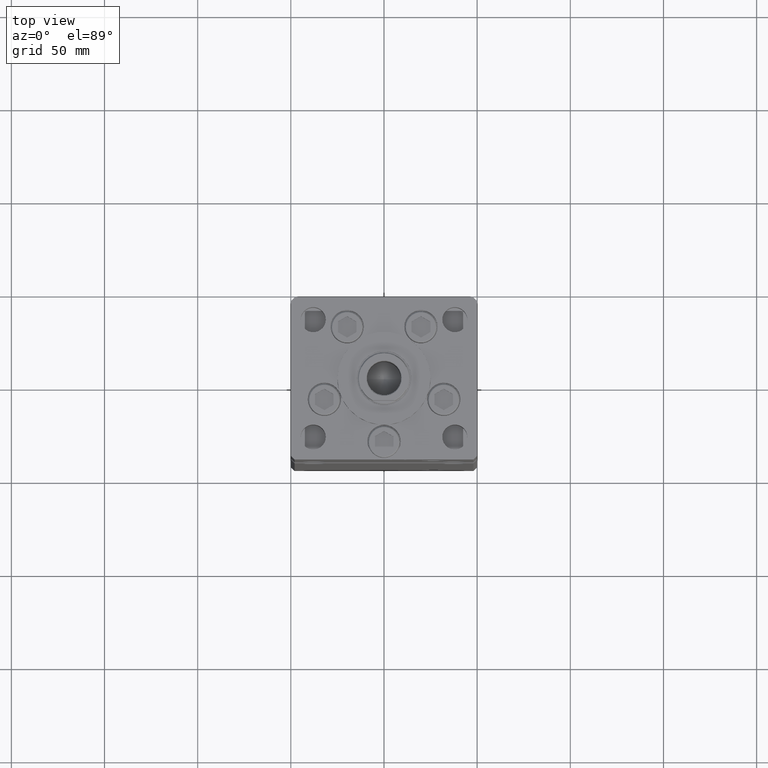
[diagram: clean part render]
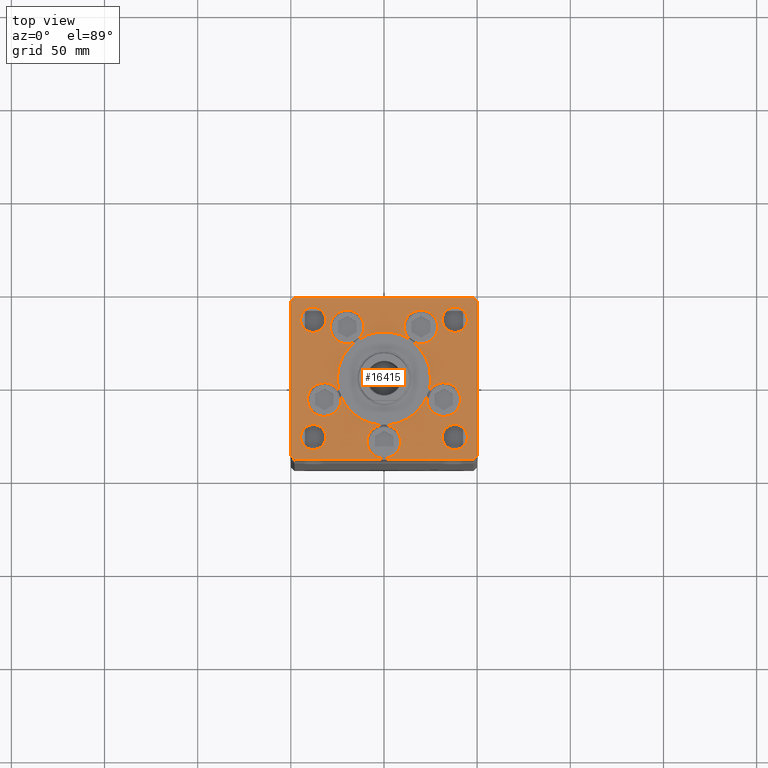
[diagram: same view with one face highlighted and labeled with its STEP entity id]
A machine part, top view. The second image highlights one B-rep face of the part: STEP entity #16415.
In plain terms, the highlighted planar face has unit normal (0, 0, 1).
Its self-contained STEP definition (entity closure, byte-faithful):
#86 = AXIS2_PLACEMENT_3D ( 'NONE', #17514, #25861, #8919 ) ;
#383 = ORIENTED_EDGE ( 'NONE', *, *, #8195, .F. ) ;
#776 = EDGE_CURVE ( 'NONE', #48174, #3886, #2328, .T. ) ;
#792 = DIRECTION ( 'NONE',  ( 0.000000000000000000, 0.000000000000000000, 1.000000000000000000 ) ) ;
#817 = CIRCLE ( 'NONE', #30876, 25.00000000000000000 ) ;
#1079 = ORIENTED_EDGE ( 'NONE', *, *, #44119, .F. ) ;
#1084 = CARTESIAN_POINT ( 'NONE',  ( -10.82068048781375147, 27.62499999999998934, 0.000000000000000000 ) ) ;
#1199 = DIRECTION ( 'NONE',  ( 0.000000000000000000, 0.000000000000000000, 1.000000000000000000 ) ) ;
#1291 = CIRCLE ( 'NONE', #8171, 25.00000000000000000 ) ;
#1341 = DIRECTION ( 'NONE',  ( 0.000000000000000000, 0.000000000000000000, 1.000000000000000000 ) ) ;
#1514 = DIRECTION ( 'NONE',  ( 1.000000000000000000, 0.000000000000000000, 0.000000000000000000 ) ) ;
#1651 = EDGE_CURVE ( 'NONE', #17766, #36702, #34996, .T. ) ;
#1687 = CARTESIAN_POINT ( 'NONE',  ( 32.05550741379015989, -11.33333333333332860, 0.000000000000000000 ) ) ;
#1797 = CARTESIAN_POINT ( 'NONE',  ( 23.57022603955158502, -8.333333333333332149, 0.000000000000000000 ) ) ;
#2023 = CARTESIAN_POINT ( 'NONE',  ( 23.05550741379015633, -11.33333333333332682, 0.000000000000000000 ) ) ;
#2281 = EDGE_LOOP ( 'NONE', ( #25132, #46814, #45062, #18929, #51613, #25404, #30604, #19545 ) ) ;
#2328 = CIRCLE ( 'NONE', #48666, 25.00000000000000000 ) ;
#2331 = CARTESIAN_POINT ( 'NONE',  ( 50.00000000000000000, 41.50000000000000711, 0.000000000000000000 ) ) ;
#2467 = EDGE_CURVE ( 'NONE', #12688, #18691, #28976, .T. ) ;
#2756 = VERTEX_POINT ( 'NONE', #36988 ) ;
#2762 = VECTOR ( 'NONE', #30854, 1000.000000000000000 ) ;
#2988 = AXIS2_PLACEMENT_3D ( 'NONE', #11235, #35705, #3440 ) ;
#3226 = EDGE_CURVE ( 'NONE', #6211, #41955, #47905, .T. ) ;
#3440 = DIRECTION ( 'NONE',  ( 1.000000000000000000, 0.000000000000000000, 0.000000000000000000 ) ) ;
#3886 = VERTEX_POINT ( 'NONE', #49533 ) ;
#4012 = CARTESIAN_POINT ( 'NONE',  ( 0.000000000000000000, -34.00000000000000000, 0.000000000000000000 ) ) ;
#4038 = EDGE_CURVE ( 'NONE', #25904, #47321, #30459, .T. ) ;
#4279 = CIRCLE ( 'NONE', #16299, 25.00000000000000000 ) ;
#4281 = ORIENTED_EDGE ( 'NONE', *, *, #9252, .F. ) ;
#4333 = VERTEX_POINT ( 'NONE', #8892 ) ;
#4598 = AXIS2_PLACEMENT_3D ( 'NONE', #50234, #21778, #14490 ) ;
#4628 = EDGE_CURVE ( 'NONE', #10903, #35834, #31642, .T. ) ;
#4926 = DIRECTION ( 'NONE',  ( 1.000000000000000000, 0.000000000000000000, 0.000000000000000000 ) ) ;
#4933 = VERTEX_POINT ( 'NONE', #25698 ) ;
#5077 = DIRECTION ( 'NONE',  ( -1.000000000000000000, 0.000000000000000000, 0.000000000000000000 ) ) ;
#5112 = DIRECTION ( 'NONE',  ( 0.000000000000000000, 1.000000000000000000, 0.000000000000000000 ) ) ;
#5137 = DIRECTION ( 'NONE',  ( 0.000000000000000000, 0.000000000000000000, 1.000000000000000000 ) ) ;
#5158 = CIRCLE ( 'NONE', #49767, 9.000000000000001776 ) ;
#5238 = AXIS2_PLACEMENT_3D ( 'NONE', #19302, #52071, #40003 ) ;
#5240 = CARTESIAN_POINT ( 'NONE',  ( 47.99999999999999289, 43.50000000000000000, 0.000000000000000000 ) ) ;
#5527 = CIRCLE ( 'NONE', #44162, 9.000000000000001776 ) ;
#5581 = CARTESIAN_POINT ( 'NONE',  ( 19.82068048781374969, 27.62499999999998934, 0.000000000000000000 ) ) ;
#5818 = VERTEX_POINT ( 'NONE', #7419 ) ;
#5860 = ORIENTED_EDGE ( 'NONE', *, *, #39821, .F. ) ;
#6096 = DIRECTION ( 'NONE',  ( 0.000000000000000000, 0.000000000000000000, 1.000000000000000000 ) ) ;
#6211 = VERTEX_POINT ( 'NONE', #26409 ) ;
#6301 = AXIS2_PLACEMENT_3D ( 'NONE', #44797, #16564, #20078 ) ;
#6342 = CIRCLE ( 'NONE', #4598, 6.749999999999999112 ) ;
#6510 = CARTESIAN_POINT ( 'NONE',  ( 19.82068048781374969, 27.62499999999998934, 0.000000000000000000 ) ) ;
#6697 = VECTOR ( 'NONE', #45365, 1000.000000000000114 ) ;
#6853 = CIRCLE ( 'NONE', #11997, 9.000000000000001776 ) ;
#6941 = FACE_BOUND ( 'NONE', #38872, .T. ) ;
#7071 = AXIS2_PLACEMENT_3D ( 'NONE', #4012, #20153, #31975 ) ;
#7419 = CARTESIAN_POINT ( 'NONE',  ( 41.05550741379015989, -11.33333333333332860, 0.000000000000000000 ) ) ;
#7756 = CARTESIAN_POINT ( 'NONE',  ( 44.75000000000000000, 31.50000000000000000, 0.000000000000000000 ) ) ;
#7765 = VECTOR ( 'NONE', #22781, 999.9999999999998863 ) ;
#7945 = CIRCLE ( 'NONE', #19109, 6.749999999999999112 ) ;
#8032 = CARTESIAN_POINT ( 'NONE',  ( 0.000000000000000000, -6.938893903907228378E-15, 0.000000000000000000 ) ) ;
#8171 = AXIS2_PLACEMENT_3D ( 'NONE', #50960, #6096, #1514 ) ;
#8195 = EDGE_CURVE ( 'NONE', #3886, #24441, #26588, .T. ) ;
#8379 = EDGE_CURVE ( 'NONE', #32514, #41955, #817, .T. ) ;
#8437 = CARTESIAN_POINT ( 'NONE',  ( -19.82068048781374969, 27.62499999999998934, 0.000000000000000000 ) ) ;
#8556 = ORIENTED_EDGE ( 'NONE', *, *, #12631, .F. ) ;
#8586 = CARTESIAN_POINT ( 'NONE',  ( -50.00000000000000000, -41.50000000000004263, 0.000000000000000000 ) ) ;
#8614 = CIRCLE ( 'NONE', #17169, 6.749999999999999112 ) ;
#8892 = CARTESIAN_POINT ( 'NONE',  ( 44.75000000000000711, -31.50000000000000711, 0.000000000000000000 ) ) ;
#8919 = DIRECTION ( 'NONE',  ( -1.000000000000000000, 0.000000000000000000, 0.000000000000000000 ) ) ;
#9076 = CARTESIAN_POINT ( 'NONE',  ( 48.00000000000000711, -43.49999999999992184, 0.000000000000000000 ) ) ;
#9252 = EDGE_CURVE ( 'NONE', #24441, #32514, #4279, .T. ) ;
#9357 = DIRECTION ( 'NONE',  ( 0.000000000000000000, 0.000000000000000000, 1.000000000000000000 ) ) ;
#9766 = DIRECTION ( 'NONE',  ( 0.000000000000000000, 0.000000000000000000, 1.000000000000000000 ) ) ;
#10017 = VECTOR ( 'NONE', #17067, 1000.000000000000000 ) ;
#10594 = EDGE_LOOP ( 'NONE', ( #25775, #28151 ) ) ;
#10671 = EDGE_CURVE ( 'NONE', #47640, #46732, #8614, .T. ) ;
#10840 = EDGE_CURVE ( 'NONE', #46732, #47640, #14650, .T. ) ;
#10903 = VERTEX_POINT ( 'NONE', #7756 ) ;
#10982 = CARTESIAN_POINT ( 'NONE',  ( -38.00000000000000000, 31.50000000000000000, 0.000000000000000000 ) ) ;
#11035 = VECTOR ( 'NONE', #26438, 1000.000000000000000 ) ;
#11106 = CIRCLE ( 'NONE', #31703, 9.000000000000001776 ) ;
#11235 = CARTESIAN_POINT ( 'NONE',  ( 0.000000000000000000, -34.00000000000000000, 0.000000000000000000 ) ) ;
#11755 = DIRECTION ( 'NONE',  ( 1.000000000000000000, 0.000000000000000000, 0.000000000000000000 ) ) ;
#11792 = DIRECTION ( 'NONE',  ( 0.000000000000000000, 0.000000000000000000, 1.000000000000000000 ) ) ;
#11979 = CIRCLE ( 'NONE', #42017, 9.000000000000000000 ) ;
#11997 = AXIS2_PLACEMENT_3D ( 'NONE', #12661, #1341, #17742 ) ;
#12467 = ORIENTED_EDGE ( 'NONE', *, *, #52353, .F. ) ;
#12572 = DIRECTION ( 'NONE',  ( -0.000000000000000000, -0.000000000000000000, -1.000000000000000000 ) ) ;
#12631 = EDGE_CURVE ( 'NONE', #24441, #48363, #6853, .T. ) ;
#12661 = CARTESIAN_POINT ( 'NONE',  ( 32.05550741379015989, -11.33333333333332860, 0.000000000000000000 ) ) ;
#12688 = VERTEX_POINT ( 'NONE', #29847 ) ;
#12800 = DIRECTION ( 'NONE',  ( 0.000000000000000000, 0.000000000000000000, 1.000000000000000000 ) ) ;
#12955 = CIRCLE ( 'NONE', #86, 6.749999999999999112 ) ;
#13180 = EDGE_CURVE ( 'NONE', #23215, #48174, #11106, .T. ) ;
#13391 = DIRECTION ( 'NONE',  ( 1.000000000000000000, 0.000000000000000000, 0.000000000000000000 ) ) ;
#13645 = EDGE_CURVE ( 'NONE', #25851, #23215, #5158, .T. ) ;
#13665 = LINE ( 'NONE', #14457, #2762 ) ;
#13680 = DIRECTION ( 'NONE',  ( -0.000000000000000000, -0.000000000000000000, -1.000000000000000000 ) ) ;
#13901 = VECTOR ( 'NONE', #46725, 1000.000000000000000 ) ;
#14307 = CIRCLE ( 'NONE', #34052, 9.000000000000001776 ) ;
#14355 = ORIENTED_EDGE ( 'NONE', *, *, #31729, .F. ) ;
#14437 = DIRECTION ( 'NONE',  ( 1.000000000000000000, 0.000000000000000000, 0.000000000000000000 ) ) ;
#14457 = CARTESIAN_POINT ( 'NONE',  ( -48.00000000000000711, -43.50000000000002842, 0.000000000000000000 ) ) ;
#14490 = DIRECTION ( 'NONE',  ( 1.000000000000000000, 0.000000000000000000, 0.000000000000000000 ) ) ;
#14650 = CIRCLE ( 'NONE', #35249, 6.749999999999999112 ) ;
#14749 = DIRECTION ( 'NONE',  ( -0.000000000000000000, -0.000000000000000000, -1.000000000000000000 ) ) ;
#15045 = ORIENTED_EDGE ( 'NONE', *, *, #22940, .F. ) ;
#15395 = VERTEX_POINT ( 'NONE', #22241 ) ;
#15800 = ORIENTED_EDGE ( 'NONE', *, *, #3226, .F. ) ;
#16057 = FACE_OUTER_BOUND ( 'NONE', #2281, .T. ) ;
#16269 = EDGE_CURVE ( 'NONE', #4333, #20771, #39587, .T. ) ;
#16299 = AXIS2_PLACEMENT_3D ( 'NONE', #8032, #11792, #20392 ) ;
#16415 = ADVANCED_FACE ( 'NONE', ( #24148, #20104, #40536, #52603, #16057, #6941 ), #27895, .T. ) ;
#16520 = AXIS2_PLACEMENT_3D ( 'NONE', #25002, #45406, #33311 ) ;
#16564 = DIRECTION ( 'NONE',  ( 0.000000000000000000, 0.000000000000000000, 1.000000000000000000 ) ) ;
#16641 = CARTESIAN_POINT ( 'NONE',  ( -23.57022603955158502, -8.333333333333332149, 0.000000000000000000 ) ) ;
#16718 = CARTESIAN_POINT ( 'NONE',  ( -14.57402977045128978, 20.31249999999999289, 0.000000000000000000 ) ) ;
#16804 = EDGE_CURVE ( 'NONE', #20771, #4333, #12955, .T. ) ;
#17067 = DIRECTION ( 'NONE',  ( -1.000000000000000000, -2.891205793294678326E-16, 0.000000000000000000 ) ) ;
#17120 = VERTEX_POINT ( 'NONE', #31933 ) ;
#17129 = AXIS2_PLACEMENT_3D ( 'NONE', #30433, #46822, #26412 ) ;
#17169 = AXIS2_PLACEMENT_3D ( 'NONE', #10982, #14749, #43777 ) ;
#17514 = CARTESIAN_POINT ( 'NONE',  ( 38.00000000000000711, -31.50000000000000711, 0.000000000000000000 ) ) ;
#17742 = DIRECTION ( 'NONE',  ( 1.000000000000000000, 0.000000000000000000, 0.000000000000000000 ) ) ;
#17766 = VERTEX_POINT ( 'NONE', #22082 ) ;
#17964 = LINE ( 'NONE', #30332, #13901 ) ;
#17993 = DIRECTION ( 'NONE',  ( 1.000000000000000000, 0.000000000000000000, 0.000000000000000000 ) ) ;
#18096 = DIRECTION ( 'NONE',  ( 1.000000000000000000, 0.000000000000000000, 0.000000000000000000 ) ) ;
#18149 = CARTESIAN_POINT ( 'NONE',  ( -23.05550741379015633, -11.33333333333332860, 0.000000000000000000 ) ) ;
#18212 = DIRECTION ( 'NONE',  ( 0.000000000000000000, 0.000000000000000000, 1.000000000000000000 ) ) ;
#18262 = ORIENTED_EDGE ( 'NONE', *, *, #20802, .F. ) ;
#18317 = CIRCLE ( 'NONE', #6301, 9.000000000000000000 ) ;
#18446 = DIRECTION ( 'NONE',  ( 0.000000000000000000, 0.000000000000000000, 1.000000000000000000 ) ) ;
#18611 = DIRECTION ( 'NONE',  ( 0.000000000000000000, 0.000000000000000000, 1.000000000000000000 ) ) ;
#18687 = AXIS2_PLACEMENT_3D ( 'NONE', #28297, #19708, #44699 ) ;
#18691 = VERTEX_POINT ( 'NONE', #30857 ) ;
#18929 = ORIENTED_EDGE ( 'NONE', *, *, #38221, .T. ) ;
#19109 = AXIS2_PLACEMENT_3D ( 'NONE', #41274, #1199, #50376 ) ;
#19191 = DIRECTION ( 'NONE',  ( 1.000000000000000000, 0.000000000000000000, 0.000000000000000000 ) ) ;
#19302 = CARTESIAN_POINT ( 'NONE',  ( 0.000000000000000000, 0.000000000000000000, 0.000000000000000000 ) ) ;
#19545 = ORIENTED_EDGE ( 'NONE', *, *, #30623, .T. ) ;
#19708 = DIRECTION ( 'NONE',  ( 0.000000000000000000, 0.000000000000000000, 1.000000000000000000 ) ) ;
#19833 = AXIS2_PLACEMENT_3D ( 'NONE', #21487, #13680, #5077 ) ;
#20078 = DIRECTION ( 'NONE',  ( 1.000000000000000000, 0.000000000000000000, 0.000000000000000000 ) ) ;
#20104 = FACE_BOUND ( 'NONE', #38404, .T. ) ;
#20153 = DIRECTION ( 'NONE',  ( 0.000000000000000000, 0.000000000000000000, 1.000000000000000000 ) ) ;
#20392 = DIRECTION ( 'NONE',  ( 1.000000000000000000, 0.000000000000000000, 0.000000000000000000 ) ) ;
#20428 = CARTESIAN_POINT ( 'NONE',  ( 0.000000000000000000, -6.938893903907228378E-15, 0.000000000000000000 ) ) ;
#20771 = VERTEX_POINT ( 'NONE', #45934 ) ;
#20802 = EDGE_CURVE ( 'NONE', #4933, #33617, #39707, .T. ) ;
#20819 = CARTESIAN_POINT ( 'NONE',  ( 47.99999999999999289, 43.50000000000000000, 0.000000000000000000 ) ) ;
#21283 = ORIENTED_EDGE ( 'NONE', *, *, #45318, .F. ) ;
#21487 = CARTESIAN_POINT ( 'NONE',  ( 38.00000000000000711, -31.50000000000000711, 0.000000000000000000 ) ) ;
#21589 = CARTESIAN_POINT ( 'NONE',  ( -48.00000000000000000, 43.49999999999997158, 0.000000000000000000 ) ) ;
#21597 = CARTESIAN_POINT ( 'NONE',  ( -31.25000000000000000, 31.50000000000000000, 0.000000000000000000 ) ) ;
#21778 = DIRECTION ( 'NONE',  ( 0.000000000000000000, 0.000000000000000000, 1.000000000000000000 ) ) ;
#22082 = CARTESIAN_POINT ( 'NONE',  ( -44.75000000000000711, -31.50000000000000711, 0.000000000000000000 ) ) ;
#22241 = CARTESIAN_POINT ( 'NONE',  ( -50.00000000000000000, -41.50000000000004263, 0.000000000000000000 ) ) ;
#22711 = CARTESIAN_POINT ( 'NONE',  ( 0.000000000000000000, -34.00000000000000000, 0.000000000000000000 ) ) ;
#22781 = DIRECTION ( 'NONE',  ( -0.7071067811865512365, 0.7071067811865439090, 0.000000000000000000 ) ) ;
#22940 = EDGE_CURVE ( 'NONE', #17120, #6211, #24458, .T. ) ;
#23215 = VERTEX_POINT ( 'NONE', #18149 ) ;
#24148 = FACE_BOUND ( 'NONE', #45582, .T. ) ;
#24399 = ORIENTED_EDGE ( 'NONE', *, *, #40143, .F. ) ;
#24441 = VERTEX_POINT ( 'NONE', #1797 ) ;
#24458 = CIRCLE ( 'NONE', #33870, 8.999999999999998224 ) ;
#24472 = DIRECTION ( 'NONE',  ( 0.7071067811865487940, -0.7071067811865463515, 0.000000000000000000 ) ) ;
#24797 = EDGE_CURVE ( 'NONE', #51934, #3886, #11979, .T. ) ;
#25002 = CARTESIAN_POINT ( 'NONE',  ( -19.82068048781374969, 27.62499999999998934, 0.000000000000000000 ) ) ;
#25132 = ORIENTED_EDGE ( 'NONE', *, *, #33959, .T. ) ;
#25266 = EDGE_CURVE ( 'NONE', #26784, #43066, #35132, .T. ) ;
#25404 = ORIENTED_EDGE ( 'NONE', *, *, #53131, .T. ) ;
#25631 = DIRECTION ( 'NONE',  ( 0.000000000000000000, 0.000000000000000000, 1.000000000000000000 ) ) ;
#25698 = CARTESIAN_POINT ( 'NONE',  ( -28.82068048781374969, 27.62499999999998934, 0.000000000000000000 ) ) ;
#25775 = ORIENTED_EDGE ( 'NONE', *, *, #37577, .F. ) ;
#25851 = VERTEX_POINT ( 'NONE', #34477 ) ;
#25861 = DIRECTION ( 'NONE',  ( -0.000000000000000000, -0.000000000000000000, -1.000000000000000000 ) ) ;
#25904 = VERTEX_POINT ( 'NONE', #21589 ) ;
#26208 = DIRECTION ( 'NONE',  ( 1.000000000000000000, 0.000000000000000000, 0.000000000000000000 ) ) ;
#26409 = CARTESIAN_POINT ( 'NONE',  ( 10.82068048781375147, 27.62499999999998934, 0.000000000000000000 ) ) ;
#26412 = DIRECTION ( 'NONE',  ( 1.000000000000000000, 0.000000000000000000, 0.000000000000000000 ) ) ;
#26438 = DIRECTION ( 'NONE',  ( -0.7071067811865536790, -0.7071067811865414665, 0.000000000000000000 ) ) ;
#26504 = ORIENTED_EDGE ( 'NONE', *, *, #10840, .T. ) ;
#26588 = CIRCLE ( 'NONE', #17129, 25.00000000000000000 ) ;
#26784 = VERTEX_POINT ( 'NONE', #37866 ) ;
#26835 = CIRCLE ( 'NONE', #7071, 9.000000000000000000 ) ;
#26988 = CARTESIAN_POINT ( 'NONE',  ( 19.82068048781374969, 27.62499999999998934, 0.000000000000000000 ) ) ;
#27128 = CARTESIAN_POINT ( 'NONE',  ( -31.25000000000000711, -31.50000000000000711, 0.000000000000000000 ) ) ;
#27778 = CIRCLE ( 'NONE', #44085, 9.000000000000001776 ) ;
#27895 = PLANE ( 'NONE',  #5238 ) ;
#28001 = AXIS2_PLACEMENT_3D ( 'NONE', #8437, #25631, #4926 ) ;
#28067 = CARTESIAN_POINT ( 'NONE',  ( 0.000000000000000000, -6.938893903907228378E-15, 0.000000000000000000 ) ) ;
#28151 = ORIENTED_EDGE ( 'NONE', *, *, #1651, .F. ) ;
#28297 = CARTESIAN_POINT ( 'NONE',  ( -38.00000000000000711, -31.50000000000000711, 0.000000000000000000 ) ) ;
#28591 = CIRCLE ( 'NONE', #39762, 25.00000000000000000 ) ;
#28976 = LINE ( 'NONE', #9076, #6697 ) ;
#29471 = VECTOR ( 'NONE', #24472, 1000.000000000000000 ) ;
#29847 = CARTESIAN_POINT ( 'NONE',  ( 48.00000000000000711, -43.49999999999992184, 0.000000000000000000 ) ) ;
#30067 = VERTEX_POINT ( 'NONE', #1084 ) ;
#30096 = DIRECTION ( 'NONE',  ( 1.000000000000000000, 0.000000000000000000, 0.000000000000000000 ) ) ;
#30247 = CIRCLE ( 'NONE', #49141, 25.00000000000000000 ) ;
#30332 = CARTESIAN_POINT ( 'NONE',  ( -50.00000000000000711, 41.49999999999999289, 0.000000000000000000 ) ) ;
#30366 = CARTESIAN_POINT ( 'NONE',  ( 0.000000000000000000, -6.938893903907228378E-15, 0.000000000000000000 ) ) ;
#30433 = CARTESIAN_POINT ( 'NONE',  ( 0.000000000000000000, -6.938893903907228378E-15, 0.000000000000000000 ) ) ;
#30459 = LINE ( 'NONE', #33941, #11035 ) ;
#30604 = ORIENTED_EDGE ( 'NONE', *, *, #4038, .T. ) ;
#30623 = EDGE_CURVE ( 'NONE', #47321, #15395, #17964, .T. ) ;
#30640 = CARTESIAN_POINT ( 'NONE',  ( 9.000000000000000000, -34.00000000000000000, 0.000000000000000000 ) ) ;
#30767 = AXIS2_PLACEMENT_3D ( 'NONE', #46451, #9357, #13391 ) ;
#30819 = ORIENTED_EDGE ( 'NONE', *, *, #16269, .T. ) ;
#30854 = DIRECTION ( 'NONE',  ( 1.000000000000000000, 1.156482317317871331E-15, 0.000000000000000000 ) ) ;
#30857 = CARTESIAN_POINT ( 'NONE',  ( 50.00000000000000000, -41.49999999999992895, 0.000000000000000000 ) ) ;
#30876 = AXIS2_PLACEMENT_3D ( 'NONE', #30366, #792, #30096 ) ;
#30984 = ORIENTED_EDGE ( 'NONE', *, *, #47578, .F. ) ;
#31147 = DIRECTION ( 'NONE',  ( 0.000000000000000000, 0.000000000000000000, 1.000000000000000000 ) ) ;
#31342 = CIRCLE ( 'NONE', #2988, 9.000000000000000000 ) ;
#31357 = EDGE_CURVE ( 'NONE', #3886, #47062, #26835, .T. ) ;
#31642 = CIRCLE ( 'NONE', #30767, 6.749999999999999112 ) ;
#31703 = AXIS2_PLACEMENT_3D ( 'NONE', #38821, #50630, #42852 ) ;
#31729 = EDGE_CURVE ( 'NONE', #2756, #48174, #30247, .T. ) ;
#31731 = ORIENTED_EDGE ( 'NONE', *, *, #42864, .F. ) ;
#31903 = CARTESIAN_POINT ( 'NONE',  ( -48.00000000000000711, -43.50000000000002842, 0.000000000000000000 ) ) ;
#31933 = CARTESIAN_POINT ( 'NONE',  ( 28.82068048781374969, 27.62499999999998934, 0.000000000000000000 ) ) ;
#31975 = DIRECTION ( 'NONE',  ( 1.000000000000000000, 0.000000000000000000, 0.000000000000000000 ) ) ;
#32116 = EDGE_CURVE ( 'NONE', #38724, #12688, #13665, .T. ) ;
#32514 = VERTEX_POINT ( 'NONE', #36423 ) ;
#32536 = LINE ( 'NONE', #33861, #38925 ) ;
#32880 = CARTESIAN_POINT ( 'NONE',  ( 14.57402977045128623, 20.31249999999998579, 0.000000000000000000 ) ) ;
#32987 = EDGE_CURVE ( 'NONE', #41955, #33617, #28591, .T. ) ;
#33059 = AXIS2_PLACEMENT_3D ( 'NONE', #26988, #43381, #26208 ) ;
#33311 = DIRECTION ( 'NONE',  ( 1.000000000000000000, 0.000000000000000000, 0.000000000000000000 ) ) ;
#33485 = CARTESIAN_POINT ( 'NONE',  ( 32.05550741379015989, -11.33333333333332860, 0.000000000000000000 ) ) ;
#33617 = VERTEX_POINT ( 'NONE', #16718 ) ;
#33861 = CARTESIAN_POINT ( 'NONE',  ( 50.00000000000000000, -41.49999999999992895, 0.000000000000000000 ) ) ;
#33870 = AXIS2_PLACEMENT_3D ( 'NONE', #5581, #18212, #14437 ) ;
#33941 = CARTESIAN_POINT ( 'NONE',  ( -48.00000000000000000, 43.49999999999997158, 0.000000000000000000 ) ) ;
#33959 = EDGE_CURVE ( 'NONE', #15395, #38724, #45138, .T. ) ;
#34052 = AXIS2_PLACEMENT_3D ( 'NONE', #1687, #9766, #18096 ) ;
#34477 = CARTESIAN_POINT ( 'NONE',  ( -41.05550741379015989, -11.33333333333332682, 0.000000000000000000 ) ) ;
#34885 = CIRCLE ( 'NONE', #28001, 9.000000000000000000 ) ;
#34996 = CIRCLE ( 'NONE', #18687, 6.749999999999999112 ) ;
#35011 = DIRECTION ( 'NONE',  ( 1.000000000000000000, 0.000000000000000000, 0.000000000000000000 ) ) ;
#35132 = LINE ( 'NONE', #2331, #7765 ) ;
#35249 = AXIS2_PLACEMENT_3D ( 'NONE', #44843, #12572, #41335 ) ;
#35705 = DIRECTION ( 'NONE',  ( 0.000000000000000000, 0.000000000000000000, 1.000000000000000000 ) ) ;
#35834 = VERTEX_POINT ( 'NONE', #51831 ) ;
#36423 = CARTESIAN_POINT ( 'NONE',  ( 25.00000000000000000, -3.877276906038844941E-15, 0.000000000000000000 ) ) ;
#36702 = VERTEX_POINT ( 'NONE', #27128 ) ;
#36988 = CARTESIAN_POINT ( 'NONE',  ( -25.00000000000000000, -6.938893903907228378E-15, 0.000000000000000000 ) ) ;
#37216 = ORIENTED_EDGE ( 'NONE', *, *, #38856, .F. ) ;
#37272 = DIRECTION ( 'NONE',  ( 1.000000000000000000, 0.000000000000000000, 0.000000000000000000 ) ) ;
#37352 = DIRECTION ( 'NONE',  ( 1.000000000000000000, 0.000000000000000000, 0.000000000000000000 ) ) ;
#37577 = EDGE_CURVE ( 'NONE', #36702, #17766, #7945, .T. ) ;
#37866 = CARTESIAN_POINT ( 'NONE',  ( 50.00000000000000000, 41.50000000000000711, 0.000000000000000000 ) ) ;
#37998 = CARTESIAN_POINT ( 'NONE',  ( -44.75000000000000000, 31.50000000000000000, 0.000000000000000000 ) ) ;
#38221 = EDGE_CURVE ( 'NONE', #18691, #26784, #32536, .T. ) ;
#38404 = EDGE_LOOP ( 'NONE', ( #26504, #42711 ) ) ;
#38479 = ORIENTED_EDGE ( 'NONE', *, *, #13645, .F. ) ;
#38607 = CARTESIAN_POINT ( 'NONE',  ( -32.05550741379015989, -11.33333333333332860, 0.000000000000000000 ) ) ;
#38724 = VERTEX_POINT ( 'NONE', #31903 ) ;
#38821 = CARTESIAN_POINT ( 'NONE',  ( -32.05550741379015989, -11.33333333333332860, 0.000000000000000000 ) ) ;
#38856 = EDGE_CURVE ( 'NONE', #33617, #30067, #18317, .T. ) ;
#38864 = ORIENTED_EDGE ( 'NONE', *, *, #4628, .F. ) ;
#38872 = EDGE_LOOP ( 'NONE', ( #30819, #43963 ) ) ;
#38925 = VECTOR ( 'NONE', #5112, 1000.000000000000000 ) ;
#39587 = CIRCLE ( 'NONE', #19833, 6.749999999999999112 ) ;
#39707 = CIRCLE ( 'NONE', #16520, 9.000000000000000000 ) ;
#39762 = AXIS2_PLACEMENT_3D ( 'NONE', #41954, #5137, #11755 ) ;
#39821 = EDGE_CURVE ( 'NONE', #5818, #24441, #27778, .T. ) ;
#40003 = DIRECTION ( 'NONE',  ( 1.000000000000000000, 0.000000000000000000, 0.000000000000000000 ) ) ;
#40143 = EDGE_CURVE ( 'NONE', #35834, #10903, #6342, .T. ) ;
#40536 = FACE_BOUND ( 'NONE', #49531, .T. ) ;
#41235 = ORIENTED_EDGE ( 'NONE', *, *, #43823, .F. ) ;
#41274 = CARTESIAN_POINT ( 'NONE',  ( -38.00000000000000711, -31.50000000000000711, 0.000000000000000000 ) ) ;
#41335 = DIRECTION ( 'NONE',  ( -1.000000000000000000, 0.000000000000000000, 0.000000000000000000 ) ) ;
#41448 = ORIENTED_EDGE ( 'NONE', *, *, #31357, .F. ) ;
#41954 = CARTESIAN_POINT ( 'NONE',  ( 0.000000000000000000, -6.938893903907228378E-15, 0.000000000000000000 ) ) ;
#41955 = VERTEX_POINT ( 'NONE', #32880 ) ;
#42017 = AXIS2_PLACEMENT_3D ( 'NONE', #22711, #47668, #19191 ) ;
#42711 = ORIENTED_EDGE ( 'NONE', *, *, #10671, .T. ) ;
#42729 = ORIENTED_EDGE ( 'NONE', *, *, #24797, .F. ) ;
#42835 = ORIENTED_EDGE ( 'NONE', *, *, #13180, .F. ) ;
#42852 = DIRECTION ( 'NONE',  ( 1.000000000000000000, 0.000000000000000000, 0.000000000000000000 ) ) ;
#42864 = EDGE_CURVE ( 'NONE', #48174, #25851, #5527, .T. ) ;
#43066 = VERTEX_POINT ( 'NONE', #20819 ) ;
#43381 = DIRECTION ( 'NONE',  ( 0.000000000000000000, 0.000000000000000000, 1.000000000000000000 ) ) ;
#43777 = DIRECTION ( 'NONE',  ( -1.000000000000000000, 0.000000000000000000, 0.000000000000000000 ) ) ;
#43823 = EDGE_CURVE ( 'NONE', #47062, #51934, #31342, .T. ) ;
#43963 = ORIENTED_EDGE ( 'NONE', *, *, #16804, .T. ) ;
#44085 = AXIS2_PLACEMENT_3D ( 'NONE', #33485, #12800, #37272 ) ;
#44119 = EDGE_CURVE ( 'NONE', #33617, #2756, #1291, .T. ) ;
#44162 = AXIS2_PLACEMENT_3D ( 'NONE', #38607, #18446, #51213 ) ;
#44471 = DIRECTION ( 'NONE',  ( 0.000000000000000000, 0.000000000000000000, 1.000000000000000000 ) ) ;
#44699 = DIRECTION ( 'NONE',  ( 1.000000000000000000, 0.000000000000000000, 0.000000000000000000 ) ) ;
#44797 = CARTESIAN_POINT ( 'NONE',  ( -19.82068048781374969, 27.62499999999998934, 0.000000000000000000 ) ) ;
#44843 = CARTESIAN_POINT ( 'NONE',  ( -38.00000000000000000, 31.50000000000000000, 0.000000000000000000 ) ) ;
#45062 = ORIENTED_EDGE ( 'NONE', *, *, #2467, .T. ) ;
#45138 = LINE ( 'NONE', #8586, #29471 ) ;
#45318 = EDGE_CURVE ( 'NONE', #41955, #17120, #48520, .T. ) ;
#45365 = DIRECTION ( 'NONE',  ( 0.7071067811865474617, 0.7071067811865474617, 0.000000000000000000 ) ) ;
#45406 = DIRECTION ( 'NONE',  ( 0.000000000000000000, 0.000000000000000000, 1.000000000000000000 ) ) ;
#45582 = EDGE_LOOP ( 'NONE', ( #46527, #15800, #15045, #21283, #47263, #4281, #5860, #12467, #8556, #383, #42729, #41235, #41448, #52707, #42835, #38479, #31731, #14355, #1079, #18262, #30984, #37216 ) ) ;
#45934 = CARTESIAN_POINT ( 'NONE',  ( 31.25000000000000711, -31.50000000000000711, 0.000000000000000000 ) ) ;
#46110 = CARTESIAN_POINT ( 'NONE',  ( -50.00000000000000711, 41.49999999999999289, 0.000000000000000000 ) ) ;
#46184 = AXIS2_PLACEMENT_3D ( 'NONE', #6510, #18611, #35011 ) ;
#46451 = CARTESIAN_POINT ( 'NONE',  ( 38.00000000000000000, 31.50000000000000000, 0.000000000000000000 ) ) ;
#46527 = ORIENTED_EDGE ( 'NONE', *, *, #32987, .F. ) ;
#46725 = DIRECTION ( 'NONE',  ( 8.360113137237620037E-17, -1.000000000000000000, 0.000000000000000000 ) ) ;
#46732 = VERTEX_POINT ( 'NONE', #21597 ) ;
#46814 = ORIENTED_EDGE ( 'NONE', *, *, #32116, .T. ) ;
#46822 = DIRECTION ( 'NONE',  ( 0.000000000000000000, 0.000000000000000000, 1.000000000000000000 ) ) ;
#46978 = CARTESIAN_POINT ( 'NONE',  ( -9.000000000000000000, -34.00000000000000000, 0.000000000000000000 ) ) ;
#47062 = VERTEX_POINT ( 'NONE', #46978 ) ;
#47263 = ORIENTED_EDGE ( 'NONE', *, *, #8379, .F. ) ;
#47321 = VERTEX_POINT ( 'NONE', #46110 ) ;
#47578 = EDGE_CURVE ( 'NONE', #30067, #4933, #34885, .T. ) ;
#47640 = VERTEX_POINT ( 'NONE', #37998 ) ;
#47668 = DIRECTION ( 'NONE',  ( 0.000000000000000000, 0.000000000000000000, 1.000000000000000000 ) ) ;
#47796 = CARTESIAN_POINT ( 'NONE',  ( -32.05550741379015989, -11.33333333333332860, 0.000000000000000000 ) ) ;
#47905 = CIRCLE ( 'NONE', #46184, 8.999999999999998224 ) ;
#48174 = VERTEX_POINT ( 'NONE', #16641 ) ;
#48363 = VERTEX_POINT ( 'NONE', #2023 ) ;
#48520 = CIRCLE ( 'NONE', #33059, 8.999999999999998224 ) ;
#48666 = AXIS2_PLACEMENT_3D ( 'NONE', #20428, #50562, #37352 ) ;
#48749 = DIRECTION ( 'NONE',  ( 1.000000000000000000, 0.000000000000000000, 0.000000000000000000 ) ) ;
#49141 = AXIS2_PLACEMENT_3D ( 'NONE', #28067, #44471, #48749 ) ;
#49531 = EDGE_LOOP ( 'NONE', ( #38864, #24399 ) ) ;
#49533 = CARTESIAN_POINT ( 'NONE',  ( 0.000000000000000000, -25.00000000000000000, 0.000000000000000000 ) ) ;
#49767 = AXIS2_PLACEMENT_3D ( 'NONE', #47796, #31147, #17993 ) ;
#50234 = CARTESIAN_POINT ( 'NONE',  ( 38.00000000000000000, 31.50000000000000000, 0.000000000000000000 ) ) ;
#50376 = DIRECTION ( 'NONE',  ( 1.000000000000000000, 0.000000000000000000, 0.000000000000000000 ) ) ;
#50562 = DIRECTION ( 'NONE',  ( 0.000000000000000000, 0.000000000000000000, 1.000000000000000000 ) ) ;
#50630 = DIRECTION ( 'NONE',  ( 0.000000000000000000, 0.000000000000000000, 1.000000000000000000 ) ) ;
#50647 = LINE ( 'NONE', #5240, #10017 ) ;
#50960 = CARTESIAN_POINT ( 'NONE',  ( 0.000000000000000000, -6.938893903907228378E-15, 0.000000000000000000 ) ) ;
#51213 = DIRECTION ( 'NONE',  ( 1.000000000000000000, 0.000000000000000000, 0.000000000000000000 ) ) ;
#51613 = ORIENTED_EDGE ( 'NONE', *, *, #25266, .T. ) ;
#51831 = CARTESIAN_POINT ( 'NONE',  ( 31.25000000000000000, 31.50000000000000000, 0.000000000000000000 ) ) ;
#51934 = VERTEX_POINT ( 'NONE', #30640 ) ;
#52071 = DIRECTION ( 'NONE',  ( -0.000000000000000000, 0.000000000000000000, 1.000000000000000000 ) ) ;
#52353 = EDGE_CURVE ( 'NONE', #48363, #5818, #14307, .T. ) ;
#52603 = FACE_BOUND ( 'NONE', #10594, .T. ) ;
#52707 = ORIENTED_EDGE ( 'NONE', *, *, #776, .F. ) ;
#53131 = EDGE_CURVE ( 'NONE', #43066, #25904, #50647, .T. ) ;